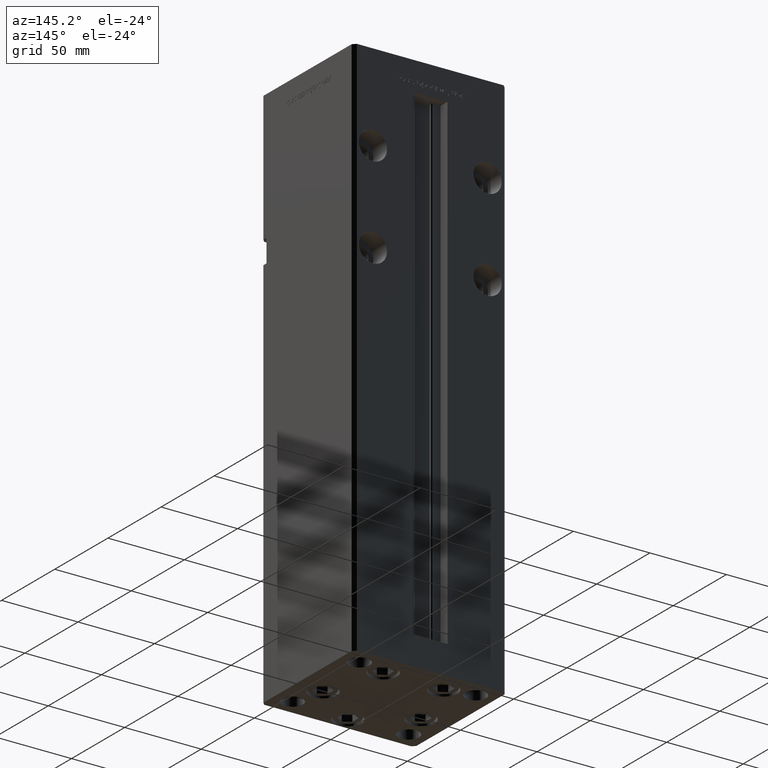
[diagram: clean part render]
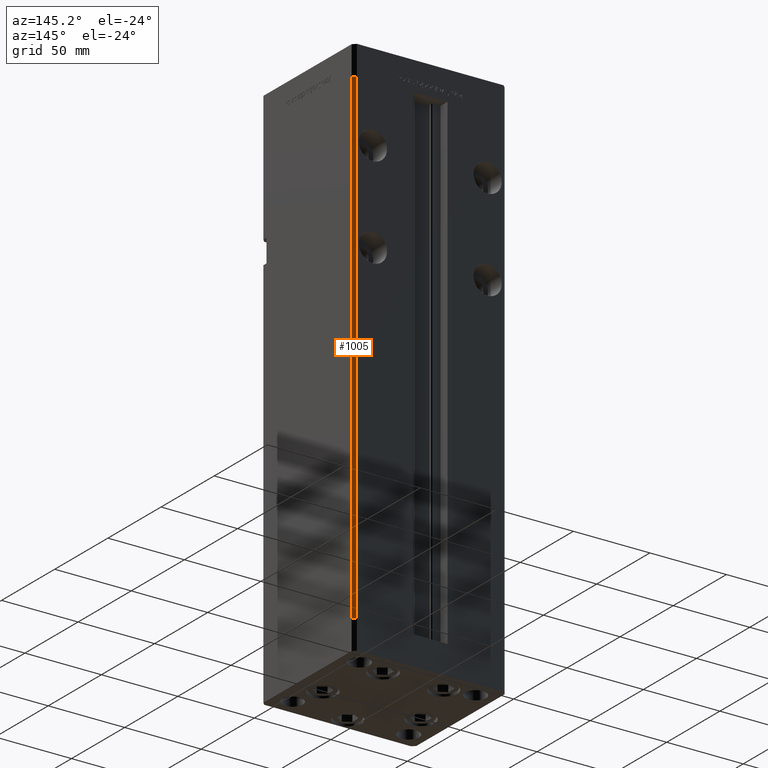
[diagram: same view with one face highlighted and labeled with its STEP entity id]
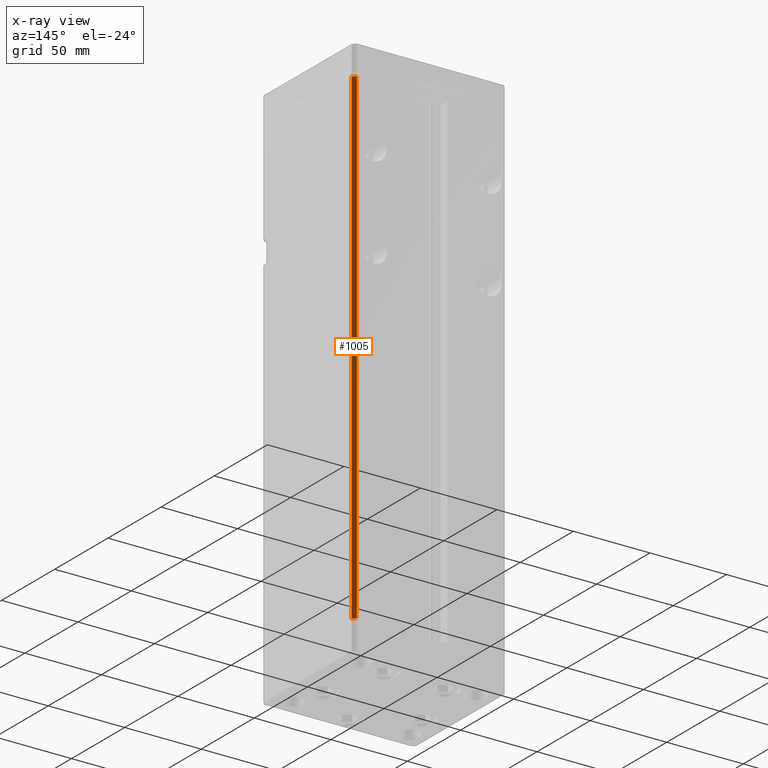
[diagram: x-ray of the same camera — body ghosted, the highlighted face saturated]
A machine part, auxiliary view. The second image highlights one B-rep face of the part: STEP entity #1005.
The next image is the same camera in x-ray: the body ghosted, the highlighted face saturated — about 0% of this face is hidden behind the body in this view.
In plain terms, the highlighted planar face has unit normal (0.7071, 0.7071, 0).
Its self-contained STEP definition (entity closure, byte-faithful):
#638 = PLANE ( 'NONE',  #38880 ) ;
#941 = LINE ( 'NONE', #45051, #52791 ) ;
#1005 = ADVANCED_FACE ( 'NONE', ( #9502 ), #638, .T. ) ;
#1110 = CARTESIAN_POINT ( 'NONE',  ( 48.00000000000000711, 43.50000000000000000, 318.5000000000000000 ) ) ;
#2769 = EDGE_CURVE ( 'NONE', #12531, #18277, #25574, .T. ) ;
#3732 = VECTOR ( 'NONE', #17497, 1000.000000000000000 ) ;
#4720 = DIRECTION ( 'NONE',  ( 0.7071067811865487940, -0.7071067811865463515, 0.000000000000000000 ) ) ;
#6247 = ORIENTED_EDGE ( 'NONE', *, *, #26897, .F. ) ;
#9502 = FACE_OUTER_BOUND ( 'NONE', #18291, .T. ) ;
#12531 = VERTEX_POINT ( 'NONE', #15918 ) ;
#14316 = ORIENTED_EDGE ( 'NONE', *, *, #28730, .T. ) ;
#15918 = CARTESIAN_POINT ( 'NONE',  ( 48.00000000000000711, 43.50000000000000000, 318.5000000000000000 ) ) ;
#17243 = DIRECTION ( 'NONE',  ( 0.7071067811865487940, -0.7071067811865463515, 0.000000000000000000 ) ) ;
#17497 = DIRECTION ( 'NONE',  ( -0.000000000000000000, -0.000000000000000000, -1.000000000000000000 ) ) ;
#18277 = VERTEX_POINT ( 'NONE', #41771 ) ;
#18291 = EDGE_LOOP ( 'NONE', ( #6247, #24356, #51479, #14316 ) ) ;
#21539 = CARTESIAN_POINT ( 'NONE',  ( 48.00000000000000711, 43.50000000000000000, 318.5000000000000000 ) ) ;
#23075 = VECTOR ( 'NONE', #17243, 1000.000000000000000 ) ;
#24356 = ORIENTED_EDGE ( 'NONE', *, *, #2769, .F. ) ;
#25130 = VERTEX_POINT ( 'NONE', #37466 ) ;
#25373 = DIRECTION ( 'NONE',  ( 0.7071067811865463515, 0.7071067811865487940, -0.000000000000000000 ) ) ;
#25574 = LINE ( 'NONE', #1110, #3732 ) ;
#26897 = EDGE_CURVE ( 'NONE', #18277, #25130, #941, .T. ) ;
#27349 = CARTESIAN_POINT ( 'NONE',  ( 50.00000000000001421, 41.49999999999999289, 318.5000000000000000 ) ) ;
#28730 = EDGE_CURVE ( 'NONE', #35060, #25130, #40251, .T. ) ;
#28867 = DIRECTION ( 'NONE',  ( -0.7071067811865487940, 0.7071067811865463515, 0.000000000000000000 ) ) ;
#32451 = DIRECTION ( 'NONE',  ( -0.000000000000000000, -0.000000000000000000, -1.000000000000000000 ) ) ;
#33979 = CARTESIAN_POINT ( 'NONE',  ( 48.00000000000000711, 43.50000000000000000, 318.5000000000000000 ) ) ;
#35060 = VERTEX_POINT ( 'NONE', #27349 ) ;
#37466 = CARTESIAN_POINT ( 'NONE',  ( 50.00000000000001421, 41.49999999999999289, 0.000000000000000000 ) ) ;
#38880 = AXIS2_PLACEMENT_3D ( 'NONE', #33979, #25373, #28867 ) ;
#40251 = LINE ( 'NONE', #53115, #43500 ) ;
#41025 = EDGE_CURVE ( 'NONE', #12531, #35060, #50055, .T. ) ;
#41771 = CARTESIAN_POINT ( 'NONE',  ( 48.00000000000000711, 43.50000000000000000, 0.000000000000000000 ) ) ;
#43500 = VECTOR ( 'NONE', #32451, 1000.000000000000000 ) ;
#45051 = CARTESIAN_POINT ( 'NONE',  ( 48.00000000000000711, 43.50000000000000000, 0.000000000000000000 ) ) ;
#50055 = LINE ( 'NONE', #21539, #23075 ) ;
#51479 = ORIENTED_EDGE ( 'NONE', *, *, #41025, .T. ) ;
#52791 = VECTOR ( 'NONE', #4720, 1000.000000000000000 ) ;
#53115 = CARTESIAN_POINT ( 'NONE',  ( 50.00000000000001421, 41.49999999999999289, 318.5000000000000000 ) ) ;